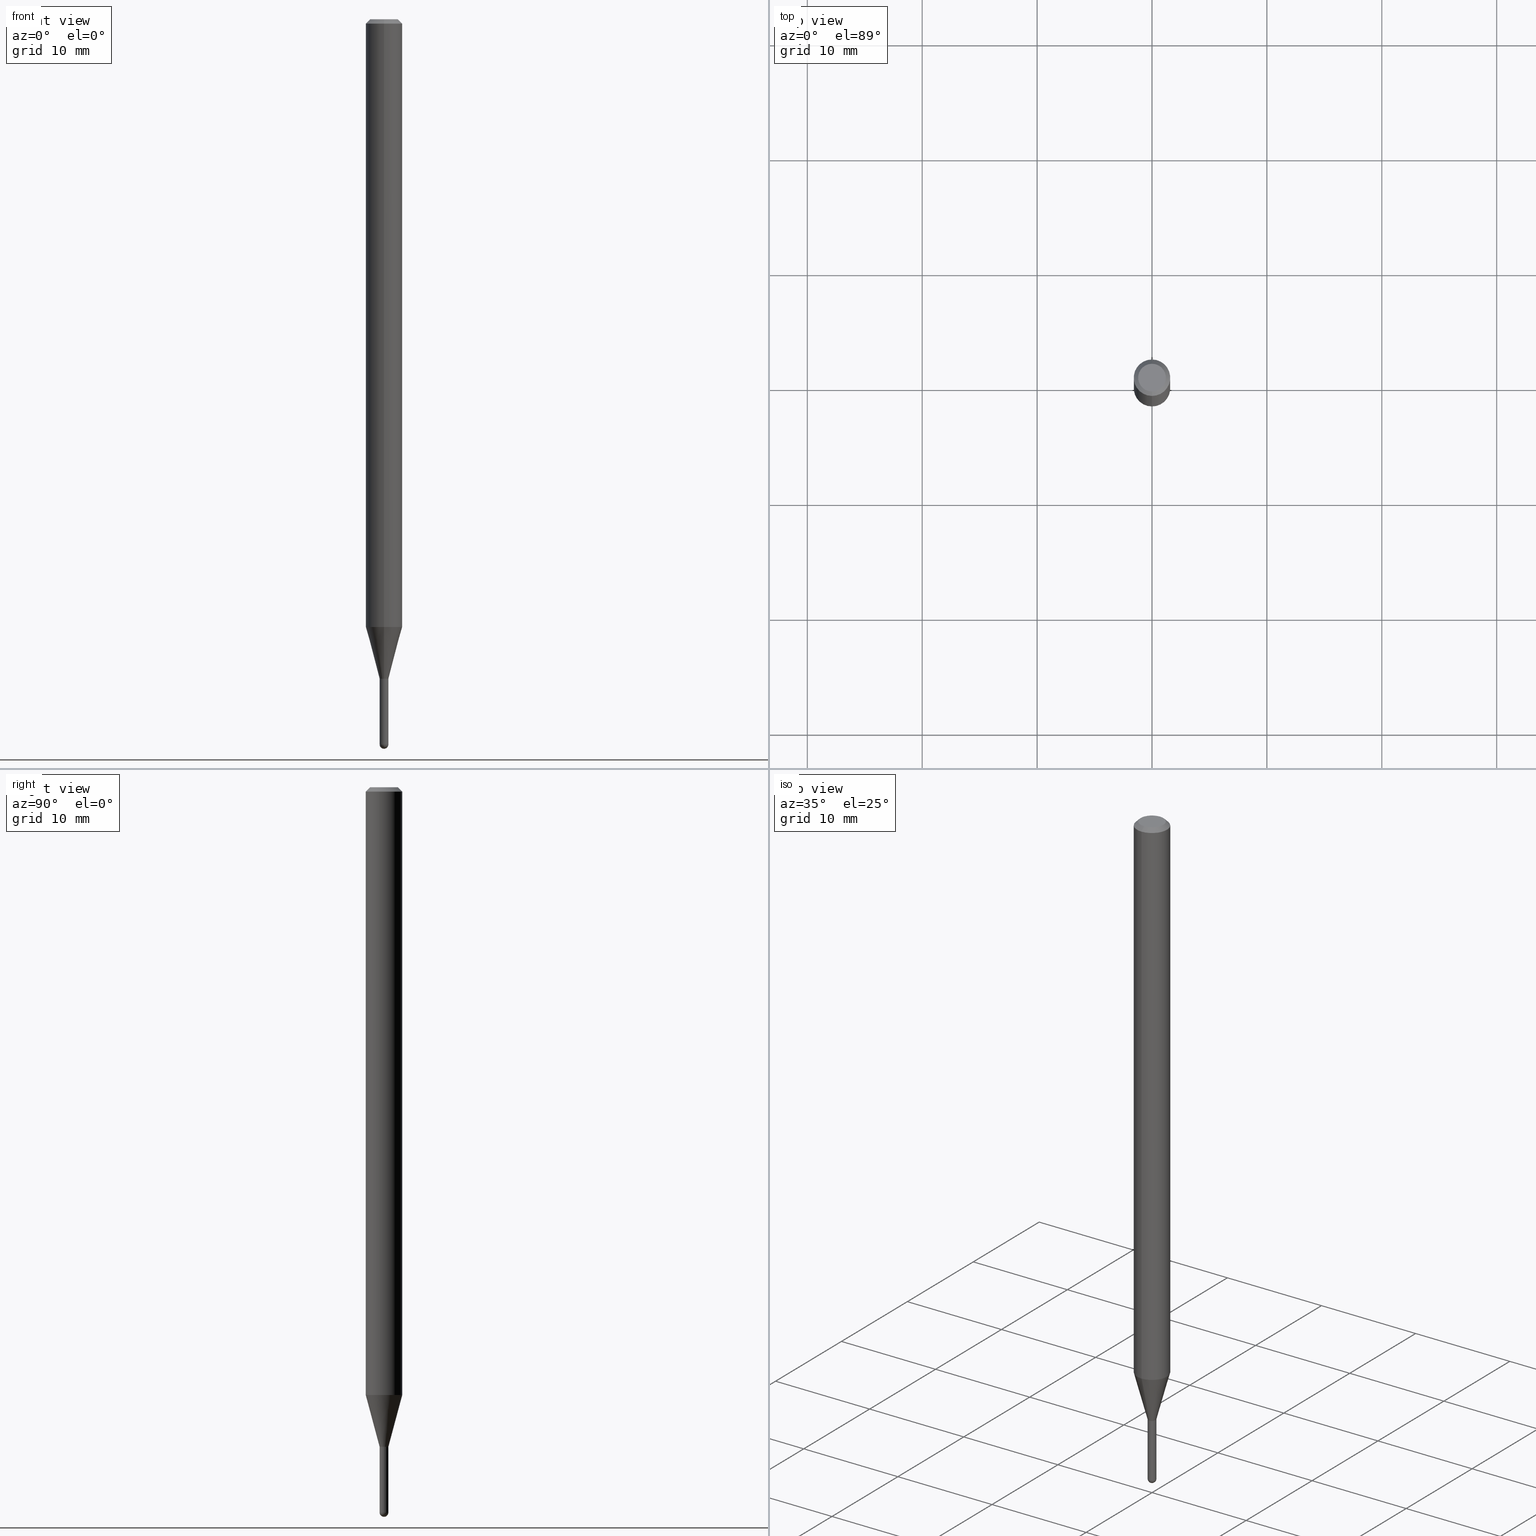
[diagram: canonical four-view strip — front | top / right | iso, engineering-drawing reading convention]
A machine part, canonical four-view strip (front | top / right | iso — engineering-drawing reading convention). The complete STEP part file that produces these views, byte-faithful:
ISO-10303-21;
HEADER;
FILE_DESCRIPTION (( 'STEP AP203' ),
    '1' );
FILE_NAME ('04486.STEP',
    '2024-03-08T20:01:40',
    ( '' ),
    ( '' ),
    'SwSTEP 2.0',
    'SolidWorks 2023',
    '' );
FILE_SCHEMA (( 'CONFIG_CONTROL_DESIGN' ));
ENDSEC;

DATA;
#1 = MECHANICAL_CONTEXT ( 'NONE', #420, 'mechanical' ) ;
#2 = APPROVAL ( #156, 'UNSPECIFIED' ) ;
#3 = DIRECTION ( 'NONE',  ( 1.000000000000000000, -6.982962677686266711E-15, 4.876176775795935793E-29 ) ) ;
#4 = CARTESIAN_POINT ( 'NONE',  ( -4.364351673553408372E-16, -0.06250000000000728584, -2.082727586640484851 ) ) ;
#5 = AXIS2_PLACEMENT_3D ( 'NONE', #48, #158, #89 ) ;
#6 = AXIS2_PLACEMENT_3D ( 'NONE', #194, #500, #271 ) ;
#7 = PRODUCT_DEFINITION_SHAPE ( 'NONE', 'NONE',  #97 ) ;
#8 = DIRECTION ( 'NONE',  ( -2.445532086721361648E-29, 3.491390717513566819E-15, 1.000000000000000000 ) ) ;
#9 = DIRECTION ( 'NONE',  ( -7.105427357601001070E-15, -1.000000000000000000, 0.000000000000000000 ) ) ;
#10 = FACE_OUTER_BOUND ( 'NONE', #122, .T. ) ;
#11 = ORIENTED_EDGE ( 'NONE', *, *, #373, .T. ) ;
#12 = DIRECTION ( 'NONE',  ( -2.445532086721361648E-29, 3.491390717513566819E-15, 1.000000000000000000 ) ) ;
#13 = PERSON_AND_ORGANIZATION ( #257, #307 ) ;
#14 = COORDINATED_UNIVERSAL_TIME_OFFSET ( 5, 0, .BEHIND. ) ;
#15 = DIRECTION ( 'NONE',  ( -1.000000000000000000, 6.982962677686265922E-15, -4.883557194083112340E-29 ) ) ;
#16 = CC_DESIGN_PERSON_AND_ORGANIZATION_ASSIGNMENT ( #40, #31, ( #97 ) ) ;
#17 = AXIS2_PLACEMENT_3D ( 'NONE', #291, #419, #101 ) ;
#18 = CONICAL_SURFACE ( 'NONE', #509, 0.06250000000000000000, 0.7853981633974483900 ) ;
#19 = DIRECTION ( 'NONE',  ( -6.982962677686265133E-15, -1.000000000000000000, 3.491390717513566819E-15 ) ) ;
#20 = DIRECTION ( 'NONE',  ( -6.982962677686265133E-15, -1.000000000000000000, 0.000000000000000000 ) ) ;
#21 = ORIENTED_EDGE ( 'NONE', *, *, #238, .F. ) ;
#22 = CARTESIAN_POINT ( 'NONE',  ( 3.668298130082058884E-31, -5.237086076270373229E-17, -0.01500000000000006710 ) ) ;
#23 = ORIENTED_EDGE ( 'NONE', *, *, #282, .F. ) ;
#24 = VECTOR ( 'NONE', #255, 39.37007874015748143 ) ;
#25 = VECTOR ( 'NONE', #337, 39.37007874015748854 ) ;
#26 = DIRECTION ( 'NONE',  ( -2.445468806185136597E-29, 3.491481338843145583E-15, 1.000000000000000000 ) ) ;
#27 = ORIENTED_EDGE ( 'NONE', *, *, #367, .F. ) ;
#28 = LOCAL_TIME ( 15, 1, 40.00000000000000000, #14 ) ;
#29 = FACE_OUTER_BOUND ( 'NONE', #458, .T. ) ;
#30 = ORIENTED_EDGE ( 'NONE', *, *, #45, .F. ) ;
#31 = PERSON_AND_ORGANIZATION_ROLE ( 'creator' ) ;
#32 = VERTEX_POINT ( 'NONE', #252 ) ;
#33 = DIRECTION ( 'NONE',  ( -6.982962677686265922E-15, -1.000000000000000000, 4.370956789862821150E-15 ) ) ;
#34 = CIRCLE ( 'NONE', #318, 0.06250000000000000000 ) ;
#35 = ORIENTED_EDGE ( 'NONE', *, *, #393, .T. ) ;
#36 = FACE_OUTER_BOUND ( 'NONE', #140, .T. ) ;
#37 = DIRECTION ( 'NONE',  ( -2.445532086721361368E-29, 3.491390717513566819E-15, 1.000000000000000000 ) ) ;
#38 = ADVANCED_FACE ( 'NONE', ( #247 ), #400, .F. ) ;
#39 = CARTESIAN_POINT ( 'NONE',  ( 5.526902515990278552E-29, -7.890543021580662754E-15, -2.260000000000000675 ) ) ;
#40 = PERSON_AND_ORGANIZATION ( #257, #307 ) ;
#41 = VECTOR ( 'NONE', #242, 39.37007874015748143 ) ;
#42 = VERTEX_POINT ( 'NONE', #485 ) ;
#43 = CIRCLE ( 'NONE', #421, 0.06250000000000000000 ) ;
#44 = APPROVAL_ROLE ( '' ) ;
#45 = EDGE_CURVE ( 'NONE', #422, #298, #300, .T. ) ;
#46 = DIRECTION ( 'NONE',  ( -2.445532086721361648E-29, 3.491390717513566819E-15, 1.000000000000000000 ) ) ;
#47 = CYLINDRICAL_SURFACE ( 'NONE', #480, 0.01499999999999999771 ) ;
#48 = CARTESIAN_POINT ( 'NONE',  ( 1.047444401653492554E-16, 0.01499999999999210992, -2.260000000000000231 ) ) ;
#49 =( NAMED_UNIT ( * ) SI_UNIT ( $, .STERADIAN. ) SOLID_ANGLE_UNIT ( ) );
#50 = ORIENTED_EDGE ( 'NONE', *, *, #381, .T. ) ;
#51 = CIRCLE ( 'NONE', #114, 0.01500000000000019894 ) ;
#52 = APPROVAL_PERSON_ORGANIZATION ( #261, #106, #76 ) ;
#53 = CARTESIAN_POINT ( 'NONE',  ( 0.000000000000000000, 0.000000000000000000, 0.000000000000000000 ) ) ;
#54 = DIRECTION ( 'NONE',  ( -2.445532086721361648E-29, 3.491390717513566819E-15, 1.000000000000000000 ) ) ;
#55 = DIRECTION ( 'NONE',  ( -6.982962677686265922E-15, -1.000000000000000000, 4.370956789862821150E-15 ) ) ;
#56 = DIRECTION ( 'NONE',  ( 4.937700262164548042E-15, 0.7071067811865451302, -0.7071067811865499042 ) ) ;
#57 = EDGE_CURVE ( 'NONE', #341, #215, #273, .T. ) ;
#58 = LINE ( 'NONE', #442, #105 ) ;
#59 = PRODUCT ( '04486', '04486', '', ( #1 ) ) ;
#60 = LINE ( 'NONE', #317, #313 ) ;
#61 = CARTESIAN_POINT ( 'NONE',  ( 3.840629472727447874E-16, 0.04749999999999999362, -2.313455976474456528E-16 ) ) ;
#62 = CIRCLE ( 'NONE', #118, 0.01499999999999999771 ) ;
#63 = EDGE_CURVE ( 'NONE', #145, #436, #443, .T. ) ;
#64 = CARTESIAN_POINT ( 'NONE',  ( 1.601934508879323066E-45, -2.287019379027748549E-31, -6.550453856555118155E-17 ) ) ;
#65 = CARTESIAN_POINT ( 'NONE',  ( 3.668298130082058884E-31, -5.237086076270373229E-17, -0.01500000000000006710 ) ) ;
#66 = EDGE_LOOP ( 'NONE', ( #126, #100, #11, #471 ) ) ;
#67 = ORIENTED_EDGE ( 'NONE', *, *, #83, .T. ) ;
#68 = CARTESIAN_POINT ( 'NONE',  ( 3.316907271900976096E-16, 0.04749999999999999362, -1.985933283646700250E-16 ) ) ;
#69 = CALENDAR_DATE ( 2024, 8, 3 ) ;
#70 = VECTOR ( 'NONE', #265, 39.37007874015748143 ) ;
#71 =( GEOMETRIC_REPRESENTATION_CONTEXT ( 3 ) GLOBAL_UNCERTAINTY_ASSIGNED_CONTEXT ( ( #450 ) ) GLOBAL_UNIT_ASSIGNED_CONTEXT ( ( #296, #253, #49 ) ) REPRESENTATION_CONTEXT ( 'NONE', 'WORKASPACE' ) );
#72 = CARTESIAN_POINT ( 'NONE',  ( -1.012529588263955736E-16, -0.01450000000000789026, -2.260000000000000675 ) ) ;
#73 = DIRECTION ( 'NONE',  ( 1.000000000000000000, -6.982962677686204391E-15, 0.000000000000000000 ) ) ;
#74 = EDGE_CURVE ( 'NONE', #269, #42, #58, .T. ) ;
#75 = VERTEX_POINT ( 'NONE', #96 ) ;
#76 = APPROVAL_ROLE ( '' ) ;
#77 = CARTESIAN_POINT ( 'NONE',  ( -0.01499999999999999771, -8.176958066041347477E-15, -2.484999999999999432 ) ) ;
#78 = ORIENTED_EDGE ( 'NONE', *, *, #134, .T. ) ;
#79 = EDGE_LOOP ( 'NONE', ( #228, #223, #197, #102 ) ) ;
#80 = VECTOR ( 'NONE', #113, 39.37007874015748143 ) ;
#81 = AXIS2_PLACEMENT_3D ( 'NONE', #204, #360, #331 ) ;
#82 = ORIENTED_EDGE ( 'NONE', *, *, #232, .T. ) ;
#83 = EDGE_CURVE ( 'NONE', #87, #145, #389, .T. ) ;
#84 = CLOSED_SHELL ( 'NONE', ( #295, #445, #150, #507, #121, #309, #352, #155, #469, #112, #463, #277 ) ) ;
#85 = CIRCLE ( 'NONE', #489, 0.06250000000000000000 ) ;
#86 = FACE_OUTER_BOUND ( 'NONE', #222, .T. ) ;
#87 = VERTEX_POINT ( 'NONE', #61 ) ;
#88 = LINE ( 'NONE', #283, #41 ) ;
#89 = DIRECTION ( 'NONE',  ( -1.000000000000000000, 6.982962677686265922E-15, -4.876176775795935793E-29 ) ) ;
#90 = DIRECTION ( 'NONE',  ( -6.982962677686265922E-15, -1.000000000000000000, 3.491390717513566819E-15 ) ) ;
#91 = AXIS2_PLACEMENT_3D ( 'NONE', #280, #171, #246 ) ;
#92 = EDGE_CURVE ( 'NONE', #227, #138, #51, .T. ) ;
#93 = CARTESIAN_POINT ( 'NONE',  ( 0.000000000000000000, 0.000000000000000000, 0.000000000000000000 ) ) ;
#94 = DIRECTION ( 'NONE',  ( -2.445532086721361368E-29, 3.491390717513566819E-15, 1.000000000000000000 ) ) ;
#95 = CARTESIAN_POINT ( 'NONE',  ( 6.076989983370063053E-29, -8.676331127025215102E-15, -2.484999999999999432 ) ) ;
#96 = CARTESIAN_POINT ( 'NONE',  ( -0.01500000000000000291, -8.176958066041347477E-15, -2.260000000000000231 ) ) ;
#97 = PRODUCT_DEFINITION ( 'UNKNOWN', '', #192, #201 ) ;
#98 = CIRCLE ( 'NONE', #380, 0.01450000000000000074 ) ;
#99 = CARTESIAN_POINT ( 'NONE',  ( 1.048050535246707440E-16, 0.01449999999999211121, -2.260000000000000675 ) ) ;
#100 = ORIENTED_EDGE ( 'NONE', *, *, #314, .T. ) ;
#101 = DIRECTION ( 'NONE',  ( 6.982962677686265922E-15, 1.000000000000000000, 0.000000000000000000 ) ) ;
#102 = ORIENTED_EDGE ( 'NONE', *, *, #170, .T. ) ;
#103 = ORIENTED_EDGE ( 'NONE', *, *, #45, .T. ) ;
#104 = EDGE_LOOP ( 'NONE', ( #270, #35, #82, #379 ) ) ;
#105 = VECTOR ( 'NONE', #409, 39.37007874015748143 ) ;
#106 = APPROVAL ( #417, 'UNSPECIFIED' ) ;
#107 = AXIS2_PLACEMENT_3D ( 'NONE', #202, #161, #353 ) ;
#108 = LINE ( 'NONE', #490, #70 ) ;
#109 = EDGE_LOOP ( 'NONE', ( #455, #279, #430, #356 ) ) ;
#110 = DIRECTION ( 'NONE',  ( 6.982962677686265922E-15, 1.000000000000000000, -3.483106191921935554E-15 ) ) ;
#111 = ORIENTED_EDGE ( 'NONE', *, *, #216, .F. ) ;
#112 = ADVANCED_FACE ( 'NONE', ( #481 ), #438, .F. ) ;
#113 = DIRECTION ( 'NONE',  ( -2.445468806185136877E-29, 3.491481338843145188E-15, 1.000000000000000000 ) ) ;
#114 = AXIS2_PLACEMENT_3D ( 'NONE', #365, #287, #20 ) ;
#115 = VECTOR ( 'NONE', #37, 39.37007874015748143 ) ;
#116 = CARTESIAN_POINT ( 'NONE',  ( -1.047444401652401091E-16, -0.01500000000000809020, -2.260000000000000231 ) ) ;
#117 = CALENDAR_DATE ( 2024, 8, 3 ) ;
#118 = AXIS2_PLACEMENT_3D ( 'NONE', #286, #437, #165 ) ;
#119 = CC_DESIGN_SECURITY_CLASSIFICATION ( #276, ( #192 ) ) ;
#120 = CYLINDRICAL_SURFACE ( 'NONE', #348, 0.01500000000000019894 ) ;
#121 = ADVANCED_FACE ( 'NONE', ( #407 ), #454, .T. ) ;
#122 = EDGE_LOOP ( 'NONE', ( #144, #266, #176, #416, #217 ) ) ;
#123 = CARTESIAN_POINT ( 'NONE',  ( 6.076989983370063053E-29, -8.676331127025215102E-15, -2.484999999999999432 ) ) ;
#124 = PERSON_AND_ORGANIZATION ( #257, #307 ) ;
#125 = EDGE_CURVE ( 'NONE', #137, #138, #334, .T. ) ;
#126 = ORIENTED_EDGE ( 'NONE', *, *, #125, .F. ) ;
#127 = CARTESIAN_POINT ( 'NONE',  ( 6.075707233936295932E-29, -8.678168097223937644E-15, -2.484999999999999876 ) ) ;
#128 = SPHERICAL_SURFACE ( 'NONE', #17, 0.01500000000000012608 ) ;
#129 = DIRECTION ( 'NONE',  ( -2.445468806185136597E-29, 3.491481338843145583E-15, 1.000000000000000000 ) ) ;
#130 = AXIS2_PLACEMENT_3D ( 'NONE', #359, #470, #404 ) ;
#131 = AXIS2_PLACEMENT_3D ( 'NONE', #414, #26, #73 ) ;
#132 = ADVANCED_FACE ( 'NONE', ( #199 ), #128, .T. ) ;
#133 = DIRECTION ( 'NONE',  ( 1.000000000000000000, -6.982962677686204391E-15, 0.000000000000000000 ) ) ;
#134 = EDGE_CURVE ( 'NONE', #42, #75, #146, .T. ) ;
#135 = DIRECTION ( 'NONE',  ( -6.982962677686265922E-15, -1.000000000000000000, 3.491390717513566819E-15 ) ) ;
#136 = APPLICATION_CONTEXT ( 'configuration controlled 3d designs of mechanical parts and assemblies' ) ;
#137 = VERTEX_POINT ( 'NONE', #99 ) ;
#138 = VERTEX_POINT ( 'NONE', #372 ) ;
#139 = CIRCLE ( 'NONE', #131, 0.01499999999999999771 ) ;
#140 = EDGE_LOOP ( 'NONE', ( #376, #182, #254, #149 ) ) ;
#141 = CALENDAR_DATE ( 2024, 8, 3 ) ;
#142 = CARTESIAN_POINT ( 'NONE',  ( -3.773273898774340269E-16, -0.04749999999999999362, 1.003365205163432404E-16 ) ) ;
#143 = FACE_OUTER_BOUND ( 'NONE', #79, .T. ) ;
#144 = ORIENTED_EDGE ( 'NONE', *, *, #456, .F. ) ;
#145 = VERTEX_POINT ( 'NONE', #142 ) ;
#146 = CIRCLE ( 'NONE', #363, 0.01499999999999999944 ) ;
#147 = CIRCLE ( 'NONE', #213, 0.01499999999999999771 ) ;
#148 = ORIENTED_EDGE ( 'NONE', *, *, #381, .F. ) ;
#149 = ORIENTED_EDGE ( 'NONE', *, *, #373, .F. ) ;
#150 = ADVANCED_FACE ( 'NONE', ( #29 ), #18, .T. ) ;
#151 = DIRECTION ( 'NONE',  ( -2.445468806185136597E-29, 3.491481338843145583E-15, 1.000000000000000000 ) ) ;
#152 = DATE_TIME_ROLE ( 'classification_date' ) ;
#153 = LINE ( 'NONE', #459, #80 ) ;
#154 = CONICAL_SURFACE ( 'NONE', #160, 0.06250000000000000000, 0.7853981633974483900 ) ;
#155 = ADVANCED_FACE ( 'NONE', ( #143 ), #154, .T. ) ;
#156 = APPROVAL_STATUS ( 'not_yet_approved' ) ;
#157 = CARTESIAN_POINT ( 'NONE',  ( -4.364351673553916201E-16, -0.06250000000000000000, 2.182119198445979262E-16 ) ) ;
#158 = DIRECTION ( 'NONE',  ( 2.438088387897960049E-29, -3.491481338843145188E-15, -1.000000000000000000 ) ) ;
#159 = APPLICATION_PROTOCOL_DEFINITION ( 'international standard', 'config_control_design', 1994, #420 ) ;
#160 = AXIS2_PLACEMENT_3D ( 'NONE', #65, #214, #368 ) ;
#161 = DIRECTION ( 'NONE',  ( -2.445532086721361648E-29, 3.491390717513566819E-15, 1.000000000000000000 ) ) ;
#162 = DIRECTION ( 'NONE',  ( -4.851104656540964275E-15, -0.7071067811865500152, -0.7071067811865450192 ) ) ;
#163 = PERSON_AND_ORGANIZATION ( #257, #307 ) ;
#164 = EDGE_LOOP ( 'NONE', ( #302, #258, #259, #350 ) ) ;
#165 = DIRECTION ( 'NONE',  ( 1.000000000000000000, -6.982962677686204391E-15, 0.000000000000000000 ) ) ;
#166 = DIRECTION ( 'NONE',  ( -6.982962677686265922E-15, -1.000000000000000000, 0.000000000000000000 ) ) ;
#167 = DIRECTION ( 'NONE',  ( -2.445532086721361648E-29, 3.491390717513566819E-15, 1.000000000000000000 ) ) ;
#168 = AXIS2_PLACEMENT_3D ( 'NONE', #212, #321, #473 ) ;
#169 = AXIS2_PLACEMENT_3D ( 'NONE', #127, #15, #401 ) ;
#170 = EDGE_CURVE ( 'NONE', #32, #436, #342, .T. ) ;
#171 = DIRECTION ( 'NONE',  ( -2.445532086721361648E-29, 3.491390717513566819E-15, 1.000000000000000000 ) ) ;
#172 = CARTESIAN_POINT ( 'NONE',  ( 5.526902515990277431E-29, -7.890543021580662754E-15, -2.260000000000000231 ) ) ;
#173 = DIRECTION ( 'NONE',  ( -2.445532086721361648E-29, 3.491390717513566819E-15, 1.000000000000000000 ) ) ;
#174 = LINE ( 'NONE', #453, #25 ) ;
#175 = EDGE_LOOP ( 'NONE', ( #221, #219, #285, #27 ) ) ;
#176 = ORIENTED_EDGE ( 'NONE', *, *, #367, .T. ) ;
#177 = DIRECTION ( 'NONE',  ( -2.445468806185136597E-29, 3.491481338843145583E-15, 1.000000000000000000 ) ) ;
#178 = ORIENTED_EDGE ( 'NONE', *, *, #63, .T. ) ;
#179 = EDGE_CURVE ( 'NONE', #422, #503, #174, .T. ) ;
#180 = ORIENTED_EDGE ( 'NONE', *, *, #410, .F. ) ;
#181 = DIRECTION ( 'NONE',  ( 2.445532086721361368E-29, -3.491390717513566819E-15, -1.000000000000000000 ) ) ;
#182 = ORIENTED_EDGE ( 'NONE', *, *, #125, .T. ) ;
#183 = ORIENTED_EDGE ( 'NONE', *, *, #184, .T. ) ;
#184 = EDGE_CURVE ( 'NONE', #298, #193, #108, .T. ) ;
#185 = AXIS2_PLACEMENT_3D ( 'NONE', #95, #177, #487 ) ;
#186 = ORIENTED_EDGE ( 'NONE', *, *, #134, .F. ) ;
#187 = DIRECTION ( 'NONE',  ( -2.445532086721361648E-29, 3.491390717513566819E-15, 1.000000000000000000 ) ) ;
#188 = AXIS2_PLACEMENT_3D ( 'NONE', #203, #477, #9 ) ;
#189 = CARTESIAN_POINT ( 'NONE',  ( 5.526759501978408888E-29, -7.890747825785510097E-15, -2.260000000000000231 ) ) ;
#190 = VECTOR ( 'NONE', #56, 39.37007874015748143 ) ;
#191 = CC_DESIGN_PERSON_AND_ORGANIZATION_ASSIGNMENT ( #249, #332, ( #276 ) ) ;
#192 = PRODUCT_DEFINITION_FORMATION_WITH_SPECIFIED_SOURCE ( 'ANY', '', #59, .NOT_KNOWN. ) ;
#193 = VERTEX_POINT ( 'NONE', #501 ) ;
#194 = CARTESIAN_POINT ( 'NONE',  ( 6.075707233936295932E-29, -8.678168097223937644E-15, -2.484999999999999876 ) ) ;
#195 = COORDINATED_UNIVERSAL_TIME_OFFSET ( 5, 0, .BEHIND. ) ;
#196 = CARTESIAN_POINT ( 'NONE',  ( 5.093377141029050254E-29, -7.271615763106022658E-15, -2.082727586640484851 ) ) ;
#197 = ORIENTED_EDGE ( 'NONE', *, *, #238, .T. ) ;
#198 = CARTESIAN_POINT ( 'NONE',  ( 1.047444401653551842E-16, 0.01499999999999138481, -2.484999999999999432 ) ) ;
#199 = FACE_OUTER_BOUND ( 'NONE', #109, .T. ) ;
#200 = CC_DESIGN_PERSON_AND_ORGANIZATION_ASSIGNMENT ( #345, #387, ( #192 ) ) ;
#201 = DESIGN_CONTEXT ( 'detailed design', #136, 'design' ) ;
#202 = CARTESIAN_POINT ( 'NONE',  ( 5.526902515990277431E-29, -7.890543021580662754E-15, -2.260000000000000231 ) ) ;
#203 = CARTESIAN_POINT ( 'NONE',  ( 6.075707233936295932E-29, -8.678168097223937644E-15, -2.484999999999999876 ) ) ;
#204 = CARTESIAN_POINT ( 'NONE',  ( 0.000000000000000000, 0.000000000000000000, 0.000000000000000000 ) ) ;
#205 = AXIS2_PLACEMENT_3D ( 'NONE', #434, #167, #333 ) ;
#206 = CARTESIAN_POINT ( 'NONE',  ( 0.000000000000000000, 0.000000000000000000, 0.000000000000000000 ) ) ;
#207 = CARTESIAN_POINT ( 'NONE',  ( 2.753353101070928077E-16, 0.01499999999999231289, -2.260000000000000231 ) ) ;
#208 = DIRECTION ( 'NONE',  ( -2.445532086721361368E-29, 3.491390717513566819E-15, 1.000000000000000000 ) ) ;
#209 = EDGE_CURVE ( 'NONE', #388, #215, #139, .T. ) ;
#210 = DIRECTION ( 'NONE',  ( 1.000000000000000000, -6.982962677686266711E-15, 4.876176775795935793E-29 ) ) ;
#211 = CYLINDRICAL_SURFACE ( 'NONE', #262, 0.01500000000000019894 ) ;
#212 = CARTESIAN_POINT ( 'NONE',  ( 1.601934508879323066E-45, -2.287019379027748549E-31, -6.550453856555118155E-17 ) ) ;
#213 = AXIS2_PLACEMENT_3D ( 'NONE', #123, #479, #133 ) ;
#214 = DIRECTION ( 'NONE',  ( 2.445532086721361648E-29, -3.491390717513566819E-15, -1.000000000000000000 ) ) ;
#215 = VERTEX_POINT ( 'NONE', #375 ) ;
#216 = EDGE_CURVE ( 'NONE', #436, #32, #85, .T. ) ;
#217 = ORIENTED_EDGE ( 'NONE', *, *, #224, .F. ) ;
#218 = DIRECTION ( 'NONE',  ( -2.445532086721361648E-29, 3.491390717513566819E-15, 1.000000000000000000 ) ) ;
#219 = ORIENTED_EDGE ( 'NONE', *, *, #413, .T. ) ;
#220 = AXIS2_PLACEMENT_3D ( 'NONE', #236, #46, #361 ) ;
#221 = ORIENTED_EDGE ( 'NONE', *, *, #57, .F. ) ;
#222 = EDGE_LOOP ( 'NONE', ( #498, #241, #289, #486 ) ) ;
#223 = ORIENTED_EDGE ( 'NONE', *, *, #83, .F. ) ;
#224 = EDGE_CURVE ( 'NONE', #75, #42, #364, .T. ) ;
#225 = DIRECTION ( 'NONE',  ( -6.982962677686266711E-15, -1.000000000000000000, 3.491390717513567213E-15 ) ) ;
#226 = MANIFOLD_SOLID_BREP ( 'Body-Move/Copy2[1]', #502 ) ;
#227 = VERTEX_POINT ( 'NONE', #250 ) ;
#228 = ORIENTED_EDGE ( 'NONE', *, *, #63, .F. ) ;
#229 = COORDINATED_UNIVERSAL_TIME_OFFSET ( 5, 0, .BEHIND. ) ;
#230 = CIRCLE ( 'NONE', #6, 0.01500000000000012608 ) ;
#231 = LOCAL_TIME ( 15, 1, 40.00000000000000000, #465 ) ;
#232 = EDGE_CURVE ( 'NONE', #503, #436, #441, .T. ) ;
#233 = PERSON_AND_ORGANIZATION_ROLE ( 'creator' ) ;
#234 = AXIS2_PLACEMENT_3D ( 'NONE', #172, #54, #166 ) ;
#235 = APPROVAL_PERSON_ORGANIZATION ( #124, #2, #316 ) ;
#236 = CARTESIAN_POINT ( 'NONE',  ( 5.526902515990277431E-29, -7.890543021580662754E-15, -2.260000000000000231 ) ) ;
#237 = CARTESIAN_POINT ( 'NONE',  ( 0.000000000000000000, 0.000000000000000000, 0.000000000000000000 ) ) ;
#238 = EDGE_CURVE ( 'NONE', #87, #32, #408, .T. ) ;
#239 = ORIENTED_EDGE ( 'NONE', *, *, #92, .T. ) ;
#240 = CARTESIAN_POINT ( 'NONE',  ( 0.01499999999999999771, -8.388283916570655181E-15, -2.484999999999999432 ) ) ;
#241 = ORIENTED_EDGE ( 'NONE', *, *, #344, .T. ) ;
#242 = DIRECTION ( 'NONE',  ( -2.445532086721361368E-29, 3.491390717513566819E-15, 1.000000000000000000 ) ) ;
#243 = CARTESIAN_POINT ( 'NONE',  ( 5.526902515990278552E-29, -7.890543021580662754E-15, -2.260000000000000675 ) ) ;
#244 = APPROVAL_DATE_TIME ( #439, #2 ) ;
#245 = AXIS2_PLACEMENT_3D ( 'NONE', #189, #151, #511 ) ;
#246 = DIRECTION ( 'NONE',  ( -6.982962677686265133E-15, -1.000000000000000000, 0.000000000000000000 ) ) ;
#247 = FACE_OUTER_BOUND ( 'NONE', #444, .T. ) ;
#248 = CYLINDRICAL_SURFACE ( 'NONE', #432, 0.06250000000000000000 ) ;
#249 = PERSON_AND_ORGANIZATION ( #257, #307 ) ;
#250 = CARTESIAN_POINT ( 'NONE',  ( -1.047444401652404543E-16, -0.01500000000000813877, -2.259500000000000508 ) ) ;
#251 = CC_DESIGN_DATE_AND_TIME_ASSIGNMENT ( #495, #152, ( #276 ) ) ;
#252 = CARTESIAN_POINT ( 'NONE',  ( 4.440892098501138921E-16, 0.06249999999999995143, -0.01500000000000028394 ) ) ;
#253 =( NAMED_UNIT ( * ) PLANE_ANGLE_UNIT ( ) SI_UNIT ( $, .RADIAN. ) );
#254 = ORIENTED_EDGE ( 'NONE', *, *, #92, .F. ) ;
#255 = DIRECTION ( 'NONE',  ( 5.024295867788190974E-15, 0.7071067811865681119, 0.7071067811865270336 ) ) ;
#256 = CIRCLE ( 'NONE', #466, 0.04749999999999999362 ) ;
#257 = PERSON ( 'UNSPECIFIED', 'UNSPECIFIED', 'UNSPECIFIED', ('UNSPECIFIED'), ('UNSPECIFIED'), ('UNSPECIFIED') ) ;
#258 = ORIENTED_EDGE ( 'NONE', *, *, #282, .T. ) ;
#259 = ORIENTED_EDGE ( 'NONE', *, *, #299, .T. ) ;
#260 = EDGE_LOOP ( 'NONE', ( #67, #50 ) ) ;
#261 = PERSON_AND_ORGANIZATION ( #257, #307 ) ;
#262 = AXIS2_PLACEMENT_3D ( 'NONE', #93, #8, #19 ) ;
#263 = CIRCLE ( 'NONE', #107, 0.01500000000000020067 ) ;
#264 = AXIS2_PLACEMENT_3D ( 'NONE', #385, #173, #335 ) ;
#265 = DIRECTION ( 'NONE',  ( 1.839019923739649619E-15, 0.2588190451025318972, 0.9659258262890653146 ) ) ;
#266 = ORIENTED_EDGE ( 'NONE', *, *, #209, .T. ) ;
#267 = ORIENTED_EDGE ( 'NONE', *, *, #216, .T. ) ;
#268 = CARTESIAN_POINT ( 'NONE',  ( 3.668298130082058884E-31, -5.237086076270373229E-17, -0.01500000000000006710 ) ) ;
#269 = VERTEX_POINT ( 'NONE', #240 ) ;
#270 = ORIENTED_EDGE ( 'NONE', *, *, #464, .F. ) ;
#271 = DIRECTION ( 'NONE',  ( 6.982962677686265922E-15, 1.000000000000000000, 0.000000000000000000 ) ) ;
#272 = EDGE_CURVE ( 'NONE', #422, #227, #60, .T. ) ;
#273 = CIRCLE ( 'NONE', #188, 0.01500000000000012608 ) ;
#274 = DIRECTION ( 'NONE',  ( -6.982962677686265922E-15, -1.000000000000000000, 0.000000000000000000 ) ) ;
#275 = VECTOR ( 'NONE', #452, 39.37007874015748143 ) ;
#276 = SECURITY_CLASSIFICATION ( '', '', #496 ) ;
#277 = ADVANCED_FACE ( 'NONE', ( #290 ), #211, .F. ) ;
#278 = DIRECTION ( 'NONE',  ( -2.445532086721361648E-29, 3.491390717513566819E-15, 1.000000000000000000 ) ) ;
#279 = ORIENTED_EDGE ( 'NONE', *, *, #57, .T. ) ;
#280 = CARTESIAN_POINT ( 'NONE',  ( 5.525679749946917960E-29, -7.888797326221905711E-15, -2.259500000000000508 ) ) ;
#281 = CONICAL_SURFACE ( 'NONE', #220, 0.01500000000000020067, 0.2617993877991574569 ) ;
#282 = EDGE_CURVE ( 'NONE', #298, #138, #88, .T. ) ;
#283 = CARTESIAN_POINT ( 'NONE',  ( 1.065814103640164291E-16, 0.01500000000000019894, -5.237086076270419451E-17 ) ) ;
#284 = DIRECTION ( 'NONE',  ( -2.445532086721361648E-29, 3.491390717513566819E-15, 1.000000000000000000 ) ) ;
#285 = ORIENTED_EDGE ( 'NONE', *, *, #377, .F. ) ;
#286 = CARTESIAN_POINT ( 'NONE',  ( 6.076989983370063053E-29, -8.676331127025215102E-15, -2.484999999999999432 ) ) ;
#287 = DIRECTION ( 'NONE',  ( -2.445532086721361648E-29, 3.491390717513566819E-15, 1.000000000000000000 ) ) ;
#288 = CALENDAR_DATE ( 2024, 8, 3 ) ;
#289 = ORIENTED_EDGE ( 'NONE', *, *, #179, .T. ) ;
#290 = FACE_OUTER_BOUND ( 'NONE', #412, .T. ) ;
#291 = CARTESIAN_POINT ( 'NONE',  ( 6.075707233936295932E-29, -8.678168097223937644E-15, -2.484999999999999876 ) ) ;
#292 = CARTESIAN_POINT ( 'NONE',  ( 0.000000000000000000, 0.000000000000000000, 0.000000000000000000 ) ) ;
#293 = AXIS2_PLACEMENT_3D ( 'NONE', #22, #340, #305 ) ;
#294 = AXIS2_PLACEMENT_3D ( 'NONE', #237, #129, #210 ) ;
#295 = ADVANCED_FACE ( 'NONE', ( #468 ), #120, .F. ) ;
#296 =( CONVERSION_BASED_UNIT ( 'INCH', #435 ) LENGTH_UNIT ( ) NAMED_UNIT ( #396 ) );
#297 = CARTESIAN_POINT ( 'NONE',  ( 1.030286966852697894E-16, 0.01449999999999211121, -2.260000000000000675 ) ) ;
#298 = VERTEX_POINT ( 'NONE', #207 ) ;
#299 = EDGE_CURVE ( 'NONE', #138, #227, #390, .T. ) ;
#300 = CIRCLE ( 'NONE', #130, 0.01500000000000020067 ) ;
#301 = ORIENTED_EDGE ( 'NONE', *, *, #499, .F. ) ;
#302 = ORIENTED_EDGE ( 'NONE', *, *, #344, .F. ) ;
#303 = DIRECTION ( 'NONE',  ( 1.000000000000000000, -6.982962677686268288E-15, 0.000000000000000000 ) ) ;
#304 = ORIENTED_EDGE ( 'NONE', *, *, #179, .F. ) ;
#305 = DIRECTION ( 'NONE',  ( -6.982962677686265922E-15, -1.000000000000000000, 3.483106191921935554E-15 ) ) ;
#306 = ORIENTED_EDGE ( 'NONE', *, *, #456, .T. ) ;
#307 = ORGANIZATION ( 'UNSPECIFIED', 'UNSPECIFIED', '' ) ;
#308 = COORDINATED_UNIVERSAL_TIME_OFFSET ( 5, 0, .BEHIND. ) ;
#309 = ADVANCED_FACE ( 'NONE', ( #86 ), #281, .T. ) ;
#310 = ORIENTED_EDGE ( 'NONE', *, *, #377, .T. ) ;
#311 = DATE_AND_TIME ( #69, #366 ) ;
#312 = SHAPE_DEFINITION_REPRESENTATION ( #7, #476 ) ;
#313 = VECTOR ( 'NONE', #433, 39.37007874015748143 ) ;
#314 = EDGE_CURVE ( 'NONE', #137, #494, #330, .T. ) ;
#315 = DIRECTION ( 'NONE',  ( -6.982962677686265922E-15, -1.000000000000000000, 3.483106191921935554E-15 ) ) ;
#316 = APPROVAL_ROLE ( '' ) ;
#317 = CARTESIAN_POINT ( 'NONE',  ( -1.047444401652953664E-16, -0.01500000000000019894, 5.237086076270419451E-17 ) ) ;
#318 = AXIS2_PLACEMENT_3D ( 'NONE', #386, #278, #33 ) ;
#319 = CARTESIAN_POINT ( 'NONE',  ( -4.287811248607203282E-16, -0.06250000000000005551, -0.01499999999999984852 ) ) ;
#320 = FACE_OUTER_BOUND ( 'NONE', #104, .T. ) ;
#321 = DIRECTION ( 'NONE',  ( -2.445532086721361648E-29, 3.491390717513566819E-15, 1.000000000000000000 ) ) ;
#322 = PERSON_AND_ORGANIZATION_ROLE ( 'design_owner' ) ;
#323 = CYLINDRICAL_SURFACE ( 'NONE', #431, 0.06250000000000000000 ) ;
#324 = APPROVAL_STATUS ( 'not_yet_approved' ) ;
#325 = CARTESIAN_POINT ( 'NONE',  ( 5.526759501978408888E-29, -7.890747825785510097E-15, -2.260000000000000231 ) ) ;
#326 = FACE_OUTER_BOUND ( 'NONE', #429, .T. ) ;
#327 = ADVANCED_FACE ( 'NONE', ( #406 ), #484, .T. ) ;
#328 = CARTESIAN_POINT ( 'NONE',  ( 6.113030640745957931E-29, -8.729621832207224636E-15, -2.500000000000000000 ) ) ;
#329 = VECTOR ( 'NONE', #162, 39.37007874015748143 ) ;
#330 = CIRCLE ( 'NONE', #205, 0.01450000000000000074 ) ;
#331 = DIRECTION ( 'NONE',  ( 1.000000000000000000, 0.000000000000000000, 0.000000000000000000 ) ) ;
#332 = PERSON_AND_ORGANIZATION_ROLE ( 'classification_officer' ) ;
#333 = DIRECTION ( 'NONE',  ( -6.982962677686265922E-15, -1.000000000000000000, 0.000000000000000000 ) ) ;
#334 = LINE ( 'NONE', #297, #24 ) ;
#335 = DIRECTION ( 'NONE',  ( -6.982962677686265922E-15, -1.000000000000000000, 0.000000000000000000 ) ) ;
#336 = CC_DESIGN_PERSON_AND_ORGANIZATION_ASSIGNMENT ( #384, #233, ( #192 ) ) ;
#337 = DIRECTION ( 'NONE',  ( -1.807323732225378654E-15, -0.2588190451025251249, 0.9659258262890670910 ) ) ;
#338 = VERTEX_POINT ( 'NONE', #198 ) ;
#339 = ADVANCED_FACE ( 'NONE', ( #399 ), #47, .T. ) ;
#340 = DIRECTION ( 'NONE',  ( -2.445532086721361648E-29, 3.491390717513566819E-15, 1.000000000000000000 ) ) ;
#341 = VERTEX_POINT ( 'NONE', #328 ) ;
#342 = CIRCLE ( 'NONE', #293, 0.06250000000000000000 ) ;
#343 = CC_DESIGN_APPROVAL ( #2, ( #97 ) ) ;
#344 = EDGE_CURVE ( 'NONE', #298, #422, #263, .T. ) ;
#345 = PERSON_AND_ORGANIZATION ( #257, #307 ) ;
#346 = DIRECTION ( 'NONE',  ( -2.445532086721361648E-29, 3.491390717513566819E-15, 1.000000000000000000 ) ) ;
#347 = PLANE ( 'NONE',  #349 ) ;
#348 = AXIS2_PLACEMENT_3D ( 'NONE', #206, #394, #362 ) ;
#349 = AXIS2_PLACEMENT_3D ( 'NONE', #68, #181, #428 ) ;
#350 = ORIENTED_EDGE ( 'NONE', *, *, #272, .F. ) ;
#351 = DIRECTION ( 'NONE',  ( -2.445468806185136597E-29, 3.491481338843145583E-15, 1.000000000000000000 ) ) ;
#352 = ADVANCED_FACE ( 'NONE', ( #320 ), #323, .T. ) ;
#353 = DIRECTION ( 'NONE',  ( -6.982962677686265922E-15, -1.000000000000000000, 0.000000000000000000 ) ) ;
#354 = CONICAL_SURFACE ( 'NONE', #425, 0.01450000000000000074, 0.7853981633974739252 ) ;
#355 = CC_DESIGN_APPROVAL ( #448, ( #192 ) ) ;
#356 = ORIENTED_EDGE ( 'NONE', *, *, #358, .F. ) ;
#357 = CARTESIAN_POINT ( 'NONE',  ( 0.000000000000000000, 0.000000000000000000, 0.000000000000000000 ) ) ;
#358 = EDGE_CURVE ( 'NONE', #338, #388, #147, .T. ) ;
#359 = CARTESIAN_POINT ( 'NONE',  ( 5.526902515990277431E-29, -7.890543021580662754E-15, -2.260000000000000231 ) ) ;
#360 = DIRECTION ( 'NONE',  ( 0.000000000000000000, 0.000000000000000000, 1.000000000000000000 ) ) ;
#361 = DIRECTION ( 'NONE',  ( -6.982962677686265922E-15, -1.000000000000000000, 0.000000000000000000 ) ) ;
#362 = DIRECTION ( 'NONE',  ( -6.982962677686265133E-15, -1.000000000000000000, 3.491390717513566819E-15 ) ) ;
#363 = AXIS2_PLACEMENT_3D ( 'NONE', #325, #457, #303 ) ;
#364 = CIRCLE ( 'NONE', #245, 0.01499999999999999944 ) ;
#365 = CARTESIAN_POINT ( 'NONE',  ( 5.525679749946917960E-29, -7.888797326221905711E-15, -2.259500000000000508 ) ) ;
#366 = LOCAL_TIME ( 15, 1, 40.00000000000000000, #229 ) ;
#367 = EDGE_CURVE ( 'NONE', #215, #269, #62, .T. ) ;
#368 = DIRECTION ( 'NONE',  ( 6.982962677686265922E-15, 1.000000000000000000, -3.483106191921935554E-15 ) ) ;
#369 = EDGE_LOOP ( 'NONE', ( #103, #183, #301, #304 ) ) ;
#370 = ORIENTED_EDGE ( 'NONE', *, *, #464, .T. ) ;
#371 = CARTESIAN_POINT ( 'NONE',  ( 4.440892098500625669E-16, 0.06250000000000000000, -2.182119198445979262E-16 ) ) ;
#372 = CARTESIAN_POINT ( 'NONE',  ( 1.065814103640713166E-16, 0.01499999999999225911, -2.259500000000000508 ) ) ;
#373 = EDGE_CURVE ( 'NONE', #494, #227, #475, .T. ) ;
#374 = ORIENTED_EDGE ( 'NONE', *, *, #272, .T. ) ;
#375 = CARTESIAN_POINT ( 'NONE',  ( -1.065814103639546884E-16, -0.01500000000000874072, -2.484999999999999432 ) ) ;
#376 = ORIENTED_EDGE ( 'NONE', *, *, #410, .T. ) ;
#377 = EDGE_CURVE ( 'NONE', #269, #338, #411, .T. ) ;
#378 = ORIENTED_EDGE ( 'NONE', *, *, #232, .F. ) ;
#379 = ORIENTED_EDGE ( 'NONE', *, *, #170, .F. ) ;
#380 = AXIS2_PLACEMENT_3D ( 'NONE', #391, #187, #274 ) ;
#381 = EDGE_CURVE ( 'NONE', #145, #87, #256, .T. ) ;
#382 = APPROVAL_DATE_TIME ( #311, #106 ) ;
#383 = CARTESIAN_POINT ( 'NONE',  ( -4.364351673553912750E-16, -0.06250000000000005551, -0.01499999999999984852 ) ) ;
#384 = PERSON_AND_ORGANIZATION ( #257, #307 ) ;
#385 = CARTESIAN_POINT ( 'NONE',  ( 5.526902515990278552E-29, -7.890543021580662754E-15, -2.260000000000000675 ) ) ;
#386 = CARTESIAN_POINT ( 'NONE',  ( 5.093377141029050254E-29, -7.271615763106022658E-15, -2.082727586640484851 ) ) ;
#387 = PERSON_AND_ORGANIZATION_ROLE ( 'design_supplier' ) ;
#388 = VERTEX_POINT ( 'NONE', #77 ) ;
#389 = CIRCLE ( 'NONE', #168, 0.04749999999999999362 ) ;
#390 = CIRCLE ( 'NONE', #91, 0.01500000000000019894 ) ;
#391 = CARTESIAN_POINT ( 'NONE',  ( 5.526902515990278552E-29, -7.890543021580662754E-15, -2.260000000000000675 ) ) ;
#392 = DATE_AND_TIME ( #395, #231 ) ;
#393 = EDGE_CURVE ( 'NONE', #193, #503, #34, .T. ) ;
#394 = DIRECTION ( 'NONE',  ( -2.445532086721361648E-29, 3.491390717513566819E-15, 1.000000000000000000 ) ) ;
#395 = CALENDAR_DATE ( 2024, 8, 3 ) ;
#396 = DIMENSIONAL_EXPONENTS ( 1.000000000000000000, 0.000000000000000000, 0.000000000000000000, 0.000000000000000000, 0.000000000000000000, 0.000000000000000000, 0.000000000000000000 ) ;
#397 = MANIFOLD_SOLID_BREP ( 'Body-Move/Copy2[2]', #84 ) ;
#398 = LINE ( 'NONE', #371, #115 ) ;
#399 = FACE_OUTER_BOUND ( 'NONE', #423, .T. ) ;
#400 = PLANE ( 'NONE',  #5 ) ;
#401 = DIRECTION ( 'NONE',  ( 6.982962677686265922E-15, 1.000000000000000000, 0.000000000000000000 ) ) ;
#402 = CONICAL_SURFACE ( 'NONE', #264, 0.01450000000000000074, 0.7853981633974739252 ) ;
#403 = DATE_TIME_ROLE ( 'creation_date' ) ;
#404 = DIRECTION ( 'NONE',  ( -6.982962677686265922E-15, -1.000000000000000000, 0.000000000000000000 ) ) ;
#405 = CYLINDRICAL_SURFACE ( 'NONE', #294, 0.01499999999999999771 ) ;
#406 = FACE_OUTER_BOUND ( 'NONE', #175, .T. ) ;
#407 = FACE_OUTER_BOUND ( 'NONE', #369, .T. ) ;
#408 = LINE ( 'NONE', #440, #190 ) ;
#409 = DIRECTION ( 'NONE',  ( -2.445468806185136877E-29, 3.491481338843145188E-15, 1.000000000000000000 ) ) ;
#410 = EDGE_CURVE ( 'NONE', #494, #137, #98, .T. ) ;
#411 = CIRCLE ( 'NONE', #185, 0.01499999999999999771 ) ;
#412 = EDGE_LOOP ( 'NONE', ( #23, #30, #374, #239 ) ) ;
#413 = EDGE_CURVE ( 'NONE', #341, #338, #230, .T. ) ;
#414 = CARTESIAN_POINT ( 'NONE',  ( 6.076989983370063053E-29, -8.676331127025215102E-15, -2.484999999999999432 ) ) ;
#415 = EDGE_LOOP ( 'NONE', ( #180, #488 ) ) ;
#416 = ORIENTED_EDGE ( 'NONE', *, *, #74, .T. ) ;
#417 = APPROVAL_STATUS ( 'not_yet_approved' ) ;
#418 = PRODUCT_RELATED_PRODUCT_CATEGORY ( 'detail', '', ( #59 ) ) ;
#419 = DIRECTION ( 'NONE',  ( -1.000000000000000000, 6.982962677686265922E-15, -4.883557194083112340E-29 ) ) ;
#420 = APPLICATION_CONTEXT ( 'configuration controlled 3d designs of mechanical parts and assemblies' ) ;
#421 = AXIS2_PLACEMENT_3D ( 'NONE', #196, #482, #55 ) ;
#422 = VERTEX_POINT ( 'NONE', #116 ) ;
#423 = EDGE_LOOP ( 'NONE', ( #451, #306, #186, #447, #310 ) ) ;
#424 = CC_DESIGN_DATE_AND_TIME_ASSIGNMENT ( #392, #403, ( #97 ) ) ;
#425 = AXIS2_PLACEMENT_3D ( 'NONE', #39, #346, #504 ) ;
#426 = FACE_OUTER_BOUND ( 'NONE', #66, .T. ) ;
#427 = DIRECTION ( 'NONE',  ( -2.445532086721361648E-29, 3.491390717513566819E-15, 1.000000000000000000 ) ) ;
#428 = DIRECTION ( 'NONE',  ( 6.982962677686265922E-15, 1.000000000000000000, -3.491390717513566819E-15 ) ) ;
#429 = EDGE_LOOP ( 'NONE', ( #512, #370, #111, #378 ) ) ;
#430 = ORIENTED_EDGE ( 'NONE', *, *, #209, .F. ) ;
#431 = AXIS2_PLACEMENT_3D ( 'NONE', #53, #12, #472 ) ;
#432 = AXIS2_PLACEMENT_3D ( 'NONE', #292, #284, #90 ) ;
#433 = DIRECTION ( 'NONE',  ( -2.445532086721361368E-29, 3.491390717513566819E-15, 1.000000000000000000 ) ) ;
#434 = CARTESIAN_POINT ( 'NONE',  ( 5.526902515990278552E-29, -7.890543021580662754E-15, -2.260000000000000675 ) ) ;
#435 = LENGTH_MEASURE_WITH_UNIT ( LENGTH_MEASURE( 0.02539999999999999897 ), #478 );
#436 = VERTEX_POINT ( 'NONE', #383 ) ;
#437 = DIRECTION ( 'NONE',  ( -2.445468806185136597E-29, 3.491481338843145583E-15, 1.000000000000000000 ) ) ;
#438 = PLANE ( 'NONE',  #460 ) ;
#439 = DATE_AND_TIME ( #288, #28 ) ;
#440 = CARTESIAN_POINT ( 'NONE',  ( 4.364351673553919652E-16, 0.06249999999999995143, -0.01500000000000028394 ) ) ;
#441 = LINE ( 'NONE', #157, #461 ) ;
#442 = CARTESIAN_POINT ( 'NONE',  ( 0.01499999999999999771, -1.047444401652939859E-16, 7.314265163693902638E-31 ) ) ;
#443 = LINE ( 'NONE', #319, #329 ) ;
#444 = EDGE_LOOP ( 'NONE', ( #78, #492 ) ) ;
#445 = ADVANCED_FACE ( 'NONE', ( #36 ), #354, .T. ) ;
#446 = CARTESIAN_POINT ( 'NONE',  ( 3.668298130082058884E-31, -5.237086076270373229E-17, -0.01500000000000006710 ) ) ;
#447 = ORIENTED_EDGE ( 'NONE', *, *, #74, .F. ) ;
#448 = APPROVAL ( #324, 'UNSPECIFIED' ) ;
#449 = FACE_OUTER_BOUND ( 'NONE', #260, .T. ) ;
#450 = UNCERTAINTY_MEASURE_WITH_UNIT (LENGTH_MEASURE( 1.000000000000000082E-05 ), #296, 'distance_accuracy_value', 'NONE');
#451 = ORIENTED_EDGE ( 'NONE', *, *, #358, .T. ) ;
#452 = DIRECTION ( 'NONE',  ( -4.937700262164674260E-15, -0.7071067811865632269, 0.7071067811865319186 ) ) ;
#453 = CARTESIAN_POINT ( 'NONE',  ( -1.047444401652401091E-16, -0.01500000000000809020, -2.260000000000000231 ) ) ;
#454 = CONICAL_SURFACE ( 'NONE', #234, 0.01500000000000020067, 0.2617993877991574569 ) ;
#455 = ORIENTED_EDGE ( 'NONE', *, *, #413, .F. ) ;
#456 = EDGE_CURVE ( 'NONE', #388, #75, #153, .T. ) ;
#457 = DIRECTION ( 'NONE',  ( -2.445468806185136597E-29, 3.491481338843145583E-15, 1.000000000000000000 ) ) ;
#458 = EDGE_LOOP ( 'NONE', ( #148, #178, #267, #21 ) ) ;
#459 = CARTESIAN_POINT ( 'NONE',  ( -0.01499999999999999771, 1.065814103640150116E-16, -7.378402635382356781E-31 ) ) ;
#460 = AXIS2_PLACEMENT_3D ( 'NONE', #243, #208, #135 ) ;
#461 = VECTOR ( 'NONE', #94, 39.37007874015748143 ) ;
#462 = LOCAL_TIME ( 15, 1, 40.00000000000000000, #308 ) ;
#463 = ADVANCED_FACE ( 'NONE', ( #426 ), #402, .T. ) ;
#464 = EDGE_CURVE ( 'NONE', #193, #32, #398, .T. ) ;
#465 = COORDINATED_UNIVERSAL_TIME_OFFSET ( 5, 0, .BEHIND. ) ;
#466 = AXIS2_PLACEMENT_3D ( 'NONE', #64, #218, #225 ) ;
#467 = APPROVAL_PERSON_ORGANIZATION ( #13, #448, #44 ) ;
#468 = FACE_OUTER_BOUND ( 'NONE', #164, .T. ) ;
#469 = ADVANCED_FACE ( 'NONE', ( #449 ), #347, .F. ) ;
#470 = DIRECTION ( 'NONE',  ( -2.445532086721361648E-29, 3.491390717513566819E-15, 1.000000000000000000 ) ) ;
#471 = ORIENTED_EDGE ( 'NONE', *, *, #299, .F. ) ;
#472 = DIRECTION ( 'NONE',  ( -6.982962677686265922E-15, -1.000000000000000000, 3.491390717513566819E-15 ) ) ;
#473 = DIRECTION ( 'NONE',  ( -6.982962677686266711E-15, -1.000000000000000000, 3.491390717513567213E-15 ) ) ;
#474 = APPLICATION_PROTOCOL_DEFINITION ( 'international standard', 'config_control_design', 1994, #136 ) ;
#475 = LINE ( 'NONE', #72, #275 ) ;
#476 = ADVANCED_BREP_SHAPE_REPRESENTATION ( '04486', ( #226, #397, #81 ), #71 ) ;
#477 = DIRECTION ( 'NONE',  ( -1.000000000000000000, 7.105427357601001070E-15, -4.926315508542082329E-29 ) ) ;
#478 =( LENGTH_UNIT ( ) NAMED_UNIT ( * ) SI_UNIT ( $, .METRE. ) );
#479 = DIRECTION ( 'NONE',  ( -2.445468806185136597E-29, 3.491481338843145583E-15, 1.000000000000000000 ) ) ;
#480 = AXIS2_PLACEMENT_3D ( 'NONE', #357, #351, #3 ) ;
#481 = FACE_OUTER_BOUND ( 'NONE', #415, .T. ) ;
#482 = DIRECTION ( 'NONE',  ( -2.445532086721361648E-29, 3.491390717513566819E-15, 1.000000000000000000 ) ) ;
#483 = CC_DESIGN_PERSON_AND_ORGANIZATION_ASSIGNMENT ( #163, #322, ( #59 ) ) ;
#484 = SPHERICAL_SURFACE ( 'NONE', #169, 0.01500000000000012608 ) ;
#485 = CARTESIAN_POINT ( 'NONE',  ( 0.01499999999999999944, -7.995492265950803467E-15, -2.260000000000000231 ) ) ;
#486 = ORIENTED_EDGE ( 'NONE', *, *, #393, .F. ) ;
#487 = DIRECTION ( 'NONE',  ( 1.000000000000000000, -6.982962677686204391E-15, 0.000000000000000000 ) ) ;
#488 = ORIENTED_EDGE ( 'NONE', *, *, #314, .F. ) ;
#489 = AXIS2_PLACEMENT_3D ( 'NONE', #268, #427, #315 ) ;
#490 = CARTESIAN_POINT ( 'NONE',  ( 1.065814103640717110E-16, 0.01499999999999231115, -2.260000000000000231 ) ) ;
#491 = LOCAL_TIME ( 15, 1, 40.00000000000000000, #195 ) ;
#492 = ORIENTED_EDGE ( 'NONE', *, *, #224, .T. ) ;
#493 = DATE_AND_TIME ( #117, #491 ) ;
#494 = VERTEX_POINT ( 'NONE', #508 ) ;
#495 = DATE_AND_TIME ( #141, #462 ) ;
#496 = SECURITY_CLASSIFICATION_LEVEL ( 'unclassified' ) ;
#497 = DIRECTION ( 'NONE',  ( 2.445532086721361648E-29, -3.491390717513566819E-15, -1.000000000000000000 ) ) ;
#498 = ORIENTED_EDGE ( 'NONE', *, *, #184, .F. ) ;
#499 = EDGE_CURVE ( 'NONE', #503, #193, #43, .T. ) ;
#500 = DIRECTION ( 'NONE',  ( 1.000000000000000000, -6.982962677686265922E-15, 4.883557194083112340E-29 ) ) ;
#501 = CARTESIAN_POINT ( 'NONE',  ( 4.440892098501133005E-16, 0.06249999999999271416, -2.082727586640485296 ) ) ;
#502 = CLOSED_SHELL ( 'NONE', ( #339, #132, #38, #327, #505 ) ) ;
#503 = VERTEX_POINT ( 'NONE', #4 ) ;
#504 = DIRECTION ( 'NONE',  ( -6.982962677686265922E-15, -1.000000000000000000, 0.000000000000000000 ) ) ;
#505 = ADVANCED_FACE ( 'NONE', ( #10 ), #405, .T. ) ;
#506 = APPROVAL_DATE_TIME ( #493, #448 ) ;
#507 = ADVANCED_FACE ( 'NONE', ( #326 ), #248, .T. ) ;
#508 = CARTESIAN_POINT ( 'NONE',  ( -1.012529588263955736E-16, -0.01450000000000789026, -2.260000000000000675 ) ) ;
#509 = AXIS2_PLACEMENT_3D ( 'NONE', #446, #497, #110 ) ;
#510 = CC_DESIGN_APPROVAL ( #106, ( #276 ) ) ;
#511 = DIRECTION ( 'NONE',  ( 1.000000000000000000, -6.982962677686268288E-15, 0.000000000000000000 ) ) ;
#512 = ORIENTED_EDGE ( 'NONE', *, *, #499, .T. ) ;
ENDSEC;
END-ISO-10303-21;
